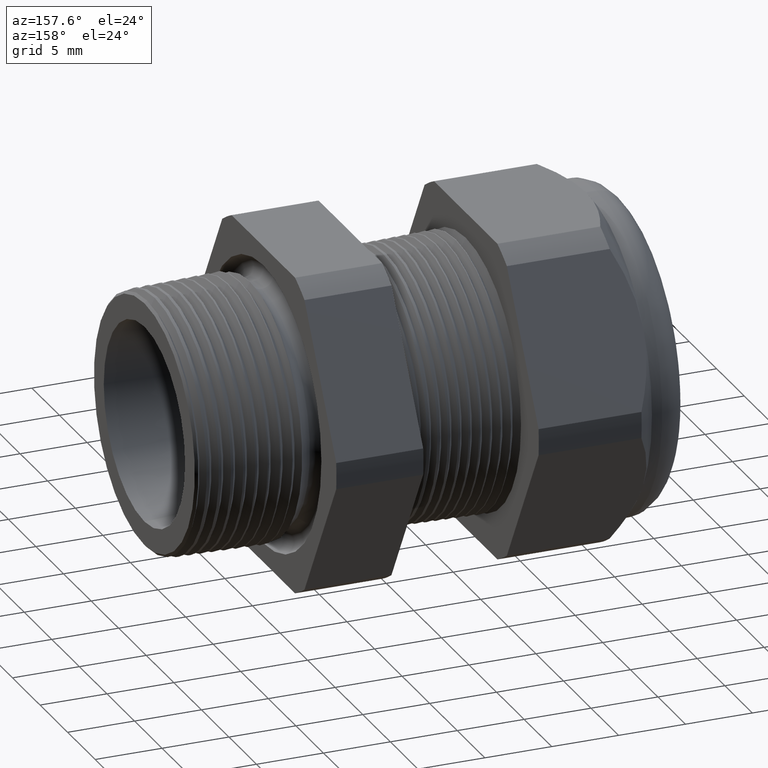
[diagram: clean part render]
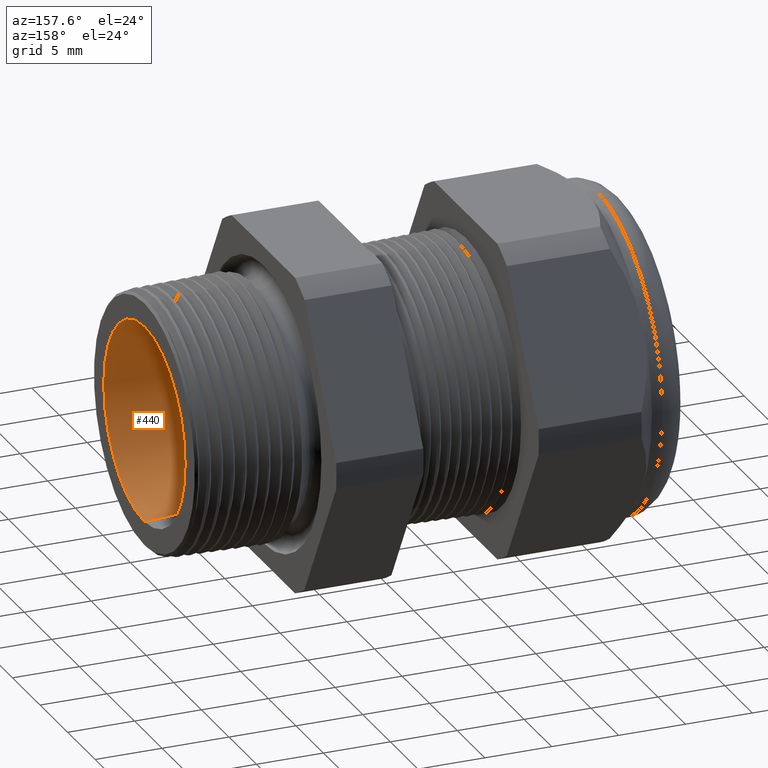
[diagram: same view with one face highlighted and labeled with its STEP entity id]
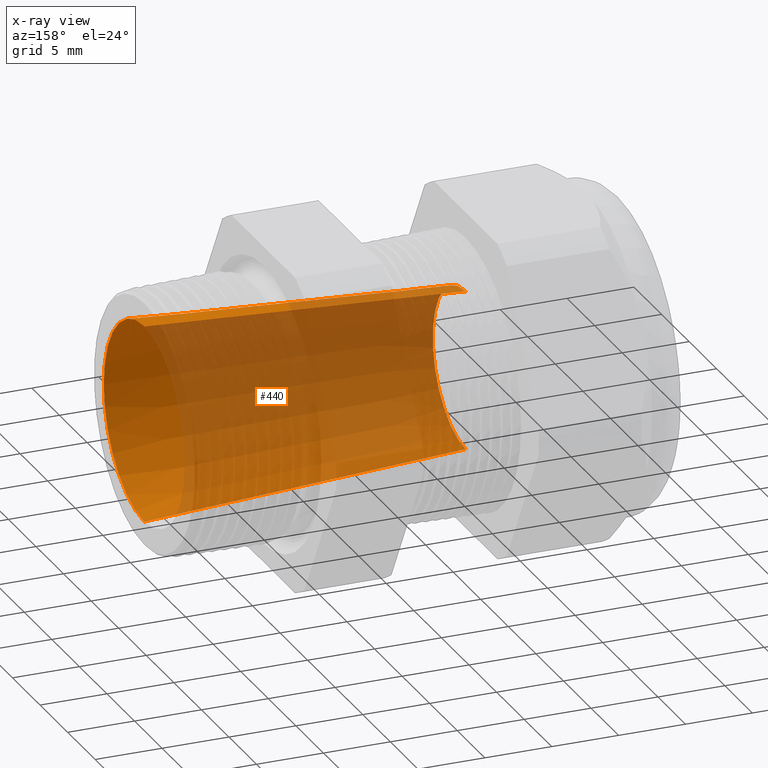
[diagram: x-ray of the same camera — body ghosted, the highlighted face saturated]
A machine part, auxiliary view. The second image highlights one B-rep face of the part: STEP entity #440.
The next image is the same camera in x-ray: the body ghosted, the highlighted face saturated — about 78% of this face is hidden behind the body in this view.
In plain terms, the highlighted conical surface has half-angle 3.344 deg.
Its self-contained STEP definition (entity closure, byte-faithful):
#415 = EDGE_CURVE ( 'NONE', #419, #416, #2338, .T. ) ;
#416 = VERTEX_POINT ( 'NONE', #2333 ) ;
#418 = ORIENTED_EDGE ( 'NONE', *, *, #415, .T. ) ;
#419 = VERTEX_POINT ( 'NONE', #2332 ) ;
#420 = EDGE_CURVE ( 'NONE', #424, #419, #2331, .T. ) ;
#421 = EDGE_CURVE ( 'NONE', #424, #423, #2327, .T. ) ;
#422 = ORIENTED_EDGE ( 'NONE', *, *, #420, .T. ) ;
#423 = VERTEX_POINT ( 'NONE', #2322 ) ;
#424 = VERTEX_POINT ( 'NONE', #2321 ) ;
#425 = ORIENTED_EDGE ( 'NONE', *, *, #421, .F. ) ;
#438 = EDGE_LOOP ( 'NONE', ( #425, #422, #418, #441 ) ) ;
#440 = ADVANCED_FACE ( 'NONE', ( #2357 ), #2355, .F. ) ;
#441 = ORIENTED_EDGE ( 'NONE', *, *, #445, .F. ) ;
#445 = EDGE_CURVE ( 'NONE', #423, #416, #2348, .T. ) ;
#2321 = CARTESIAN_POINT ( 'NONE',  ( -0.9054330708661418900, 2.877919977996280400E-017, 0.2350000000000000100 ) ) ;
#2322 = CARTESIAN_POINT ( 'NONE',  ( -0.9054330708661418900, 0.0000000000000000000, -0.2350000000000000100 ) ) ;
#2323 = DIRECTION ( 'NONE',  ( 0.0000000000000000000, 0.0000000000000000000, -1.000000000000000000 ) ) ;
#2324 = DIRECTION ( 'NONE',  ( 1.000000000000000000, 0.0000000000000000000, 0.0000000000000000000 ) ) ;
#2325 = CARTESIAN_POINT ( 'NONE',  ( -0.9054330708661418900, 0.0000000000000000000, 0.0000000000000000000 ) ) ;
#2326 = AXIS2_PLACEMENT_3D ( 'NONE', #2325, #2324, #2323 ) ;
#2327 = CIRCLE ( 'NONE', #2326, 0.2350000000000000100 ) ;
#2328 = DIRECTION ( 'NONE',  ( 0.9982972455772092200, 7.143596323732995500E-018, 0.05833189070274503300 ) ) ;
#2329 = VECTOR ( 'NONE', #2328, 39.37007874015748900 ) ;
#2330 = CARTESIAN_POINT ( 'NONE',  ( -0.9054330708661418900, 2.877919977996280400E-017, 0.2350000000000000100 ) ) ;
#2331 = LINE ( 'NONE', #2330, #2329 ) ;
#2332 = CARTESIAN_POINT ( 'NONE',  ( 0.03999999999999997300, 3.554451165405293600E-017, 0.2902429637573903900 ) ) ;
#2333 = CARTESIAN_POINT ( 'NONE',  ( 0.03999999999999997300, 0.0000000000000000000, -0.2902429637573903900 ) ) ;
#2334 = DIRECTION ( 'NONE',  ( 0.0000000000000000000, 0.0000000000000000000, -1.000000000000000000 ) ) ;
#2335 = DIRECTION ( 'NONE',  ( 1.000000000000000000, 0.0000000000000000000, 0.0000000000000000000 ) ) ;
#2336 = CARTESIAN_POINT ( 'NONE',  ( 0.03999999999999997300, 0.0000000000000000000, 0.0000000000000000000 ) ) ;
#2337 = AXIS2_PLACEMENT_3D ( 'NONE', #2336, #2335, #2334 ) ;
#2338 = CIRCLE ( 'NONE', #2337, 0.2902429637573903900 ) ;
#2341 = DIRECTION ( 'NONE',  ( 0.9982972455772092200, 0.0000000000000000000, -0.05833189070274503300 ) ) ;
#2342 = VECTOR ( 'NONE', #2341, 39.37007874015748900 ) ;
#2343 = CARTESIAN_POINT ( 'NONE',  ( -0.9054330708661418900, 0.0000000000000000000, -0.2350000000000000100 ) ) ;
#2348 = LINE ( 'NONE', #2343, #2342 ) ;
#2351 = DIRECTION ( 'NONE',  ( 0.0000000000000000000, 0.0000000000000000000, -1.000000000000000000 ) ) ;
#2352 = DIRECTION ( 'NONE',  ( 1.000000000000000000, 0.0000000000000000000, 0.0000000000000000000 ) ) ;
#2353 = CARTESIAN_POINT ( 'NONE',  ( -0.9054330708661418900, 0.0000000000000000000, 0.0000000000000000000 ) ) ;
#2354 = AXIS2_PLACEMENT_3D ( 'NONE', #2353, #2352, #2351 ) ;
#2355 = CONICAL_SURFACE ( 'NONE', #2354, 0.2350000000000000100, 0.05836502156429304600 ) ;
#2357 = FACE_OUTER_BOUND ( 'NONE', #438, .T. ) ;